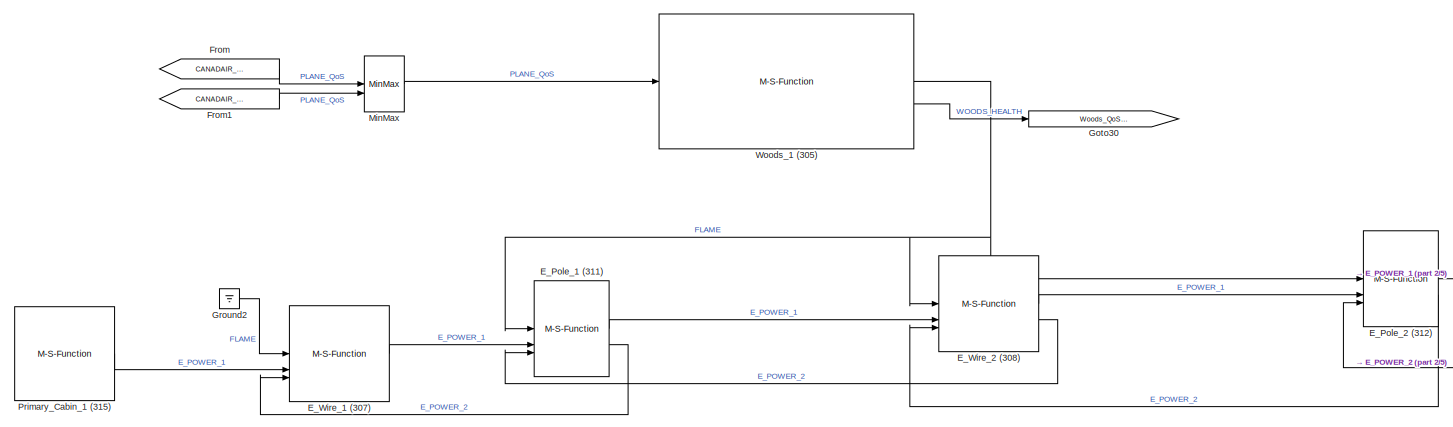
[diagram: root canvas - part 1/5, top center region]
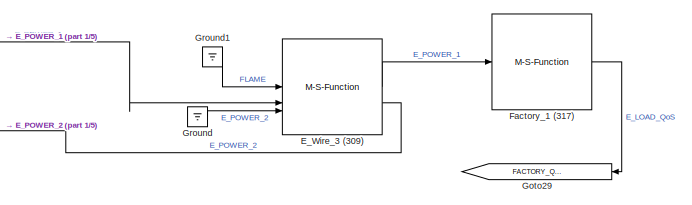
[diagram: root canvas - part 2/5, top right region]
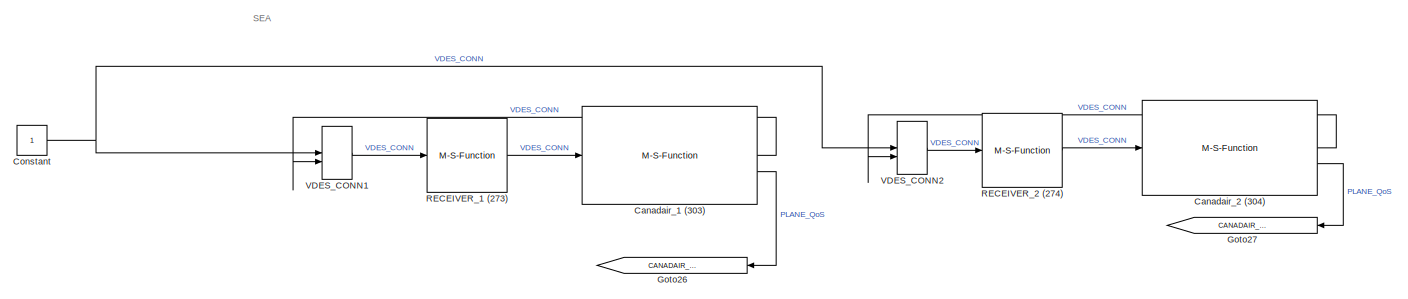
[diagram: root canvas - part 3/5, central region]
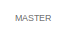
[diagram: root canvas - part 4/5, bottom left region]
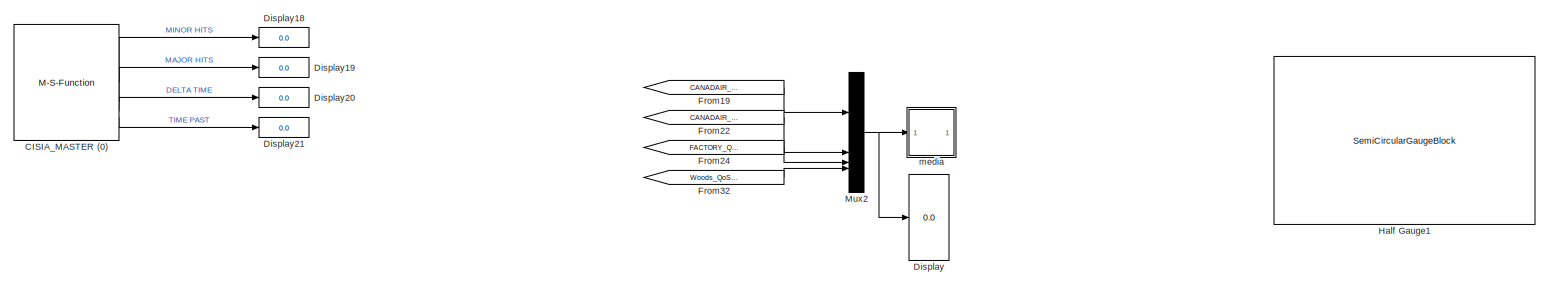
[diagram: root canvas - part 5/5, bottom center region]
MODEL slx_6f389c6af800
KIND model
CONFIG AbsTol = auto
CONFIG EnableMultiTasking = off
CONFIG FixedStep = auto
CONFIG MaxStep = auto
CONFIG MinStep = auto
CONFIG RelTol = 1e-3
CONFIG SampleTimeConstraint = Unconstrained
CONFIG SolverName = VariableStepAuto
CONFIG StartTime = 0.0
CONFIG StopTime = 2
BLOCK [M-S-Function] CISIA_MASTER (0)
  FunctionName = cisia_msfun
  Parameters = Parameter1, Parameter2, Parameter3, resources, Parameter4, Parameter5, Parameter6, Parameter7, Parameter8, Parameter9,Parameter11,Parameter12
BLOCK [M-S-Function] Canadair_1 (303)
  FunctionName = cisia_msfun
  Parameters = Parameter1, Parameter2, Parameter3, resources, Parameter10, codeupdate, step_received, step_computed, dynamic_computed, step_sended, id_entity, id_project, id_type, name_type, color
BLOCK [M-S-Function] Canadair_2 (304)
  FunctionName = cisia_msfun
  Parameters = Parameter1, Parameter2, Parameter3, resources, Parameter10, codeupdate, step_received, step_computed, dynamic_computed, step_sended, id_entity, id_project, id_type, name_type, color
BLOCK [Constant] Constant
BLOCK [Display] Display
  Decimation = 1
BLOCK [Display] Display18
  Decimation = 1
BLOCK [Display] Display19
  Decimation = 1
BLOCK [Display] Display20
  Decimation = 1
BLOCK [Display] Display21
  Decimation = 1
BLOCK [M-S-Function] E_Pole_1 (311)
  FunctionName = cisia_msfun
  Parameters = Parameter1, Parameter2, Parameter3, resources, Parameter10, codeupdate, step_received, step_computed, dynamic_computed, step_sended, id_entity, id_project, id_type, name_type, color
BLOCK [M-S-Function] E_Pole_2 (312)
  FunctionName = cisia_msfun
  Parameters = Parameter1, Parameter2, Parameter3, resources, Parameter10, codeupdate, step_received, step_computed, dynamic_computed, step_sended, id_entity, id_project, id_type, name_type, color
BLOCK [M-S-Function] E_Wire_1 (307)
  FunctionName = cisia_msfun
  Parameters = Parameter1, Parameter2, Parameter3, resources, Parameter10, codeupdate, step_received, step_computed, dynamic_computed, step_sended, id_entity, id_project, id_type, name_type, color
BLOCK [M-S-Function] E_Wire_2 (308)
  FunctionName = cisia_msfun
  Parameters = Parameter1, Parameter2, Parameter3, resources, Parameter10, codeupdate, step_received, step_computed, dynamic_computed, step_sended, id_entity, id_project, id_type, name_type, color
BLOCK [M-S-Function] E_Wire_3 (309)
  FunctionName = cisia_msfun
  Parameters = Parameter1, Parameter2, Parameter3, resources, Parameter10, codeupdate, step_received, step_computed, dynamic_computed, step_sended, id_entity, id_project, id_type, name_type, color
BLOCK [M-S-Function] Factory_1 (317)
  FunctionName = cisia_msfun
  Parameters = Parameter1, Parameter2, Parameter3, resources, Parameter10, codeupdate, step_received, step_computed, dynamic_computed, step_sended, id_entity, id_project, id_type, name_type, color
BLOCK [From] From
  GotoTag = CANADAIR_QoS_1
BLOCK [From] From1
  GotoTag = CANADAIR_QoS_2
BLOCK [From] From19
  GotoTag = CANADAIR_QoS_1
BLOCK [From] From22
  GotoTag = CANADAIR_QoS_2
BLOCK [From] From24
  GotoTag = FACTORY_QoS_1
BLOCK [From] From32
  GotoTag = Woods_QoS_1
BLOCK [Goto] Goto26
  GotoTag = CANADAIR_QoS_1
  NameLocation = top
BLOCK [Goto] Goto27
  GotoTag = CANADAIR_QoS_2
  NameLocation = top
BLOCK [Goto] Goto29
  GotoTag = FACTORY_QoS_1
  NameLocation = top
BLOCK [Goto] Goto30
  GotoTag = Woods_QoS_1
BLOCK [Ground] Ground
BLOCK [Ground] Ground1
BLOCK [Ground] Ground2
BLOCK [SemiCircularGaugeBlock] Half Gauge1
  ScaleMax = 1
BLOCK [MinMax] MinMax
  Function = max
  Inputs = 2
BLOCK [Mux] Mux2
  DisplayOption = bar
BLOCK [M-S-Function] Primary_Cabin_1 (315)
  FunctionName = cisia_msfun
  Parameters = Parameter1, Parameter2, Parameter3, resources, Parameter10, codeupdate, step_received, step_computed, dynamic_computed, step_sended, id_entity, id_project, id_type, name_type, color
BLOCK [M-S-Function] RECEIVER_1 (273)
  FunctionName = cisia_msfun
  Parameters = Parameter1, Parameter2, Parameter3, resources, Parameter10, codeupdate, step_received, step_computed, dynamic_computed, step_sended, id_entity, id_project, id_type, name_type, color
BLOCK [M-S-Function] RECEIVER_2 (274)
  FunctionName = cisia_msfun
  Parameters = Parameter1, Parameter2, Parameter3, resources, Parameter10, codeupdate, step_received, step_computed, dynamic_computed, step_sended, id_entity, id_project, id_type, name_type, color
BLOCK [MinMax] VDES_CONN1
  Function = max
  Inputs = 2
BLOCK [MinMax] VDES_CONN2
  Function = max
  Inputs = 2
BLOCK [M-S-Function] Woods_1 (305)
  FunctionName = cisia_msfun
  Parameters = Parameter1, Parameter2, Parameter3, resources, Parameter10, codeupdate, step_received, step_computed, dynamic_computed, step_sended, id_entity, id_project, id_type, name_type, color
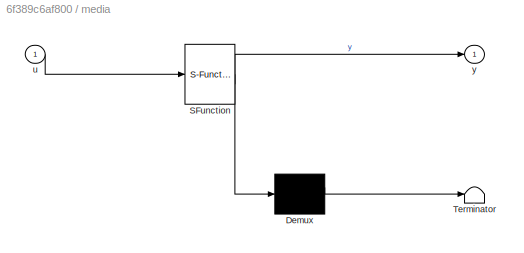
BLOCK [SubSystem] media
  ErrorFcn = Stateflow.Translate.translate
  LibrarySourceBlock = simulink/User-Defined\nFunctions/MATLAB Function
  PermitHierarchicalResolution = ExplicitOnly
  SFBlockType = MATLAB Function
  TreatAsAtomicUnit = on
BLOCK [Demux] media/ Demux 
  Outputs = 1
BLOCK [S-Function] media/ SFunction 
  EnableBusSupport = on
  FunctionName = sf_sfun
  PortCounts = [1 2]
  SFcnIsStateOwnerBlock = off
  SFunctionDeploymentMode = off
  Tag = Stateflow S-Function 2
BLOCK [Terminator] media/ Terminator 
BLOCK [Inport] media/u
BLOCK [Outport] media/y
ANNOTATION (root): MASTER
ANNOTATION (root): SEA
LINE CISIA_MASTER (0):1 -> Display18:1
LINE CISIA_MASTER (0):2 -> Display19:1
LINE CISIA_MASTER (0):3 -> Display20:1
LINE CISIA_MASTER (0):4 -> Display21:1
LINE Canadair_1 (303):1 -> VDES_CONN1:2
LINE Canadair_1 (303):2 -> Goto26:1
LINE Canadair_2 (304):1 -> VDES_CONN2:2
LINE Canadair_2 (304):2 -> Goto27:1
NET Constant:1 -> VDES_CONN1:1, VDES_CONN2:1
LINE E_Pole_1 (311):1 -> E_Wire_2 (308):2
LINE E_Pole_1 (311):2 -> E_Wire_1 (307):3
LINE E_Pole_2 (312):1 -> E_Wire_3 (309):2
LINE E_Pole_2 (312):2 -> E_Wire_2 (308):3
LINE E_Wire_1 (307):1 -> E_Pole_1 (311):2
LINE E_Wire_2 (308):1 -> E_Pole_2 (312):2
LINE E_Wire_2 (308):2 -> E_Pole_1 (311):3
LINE E_Wire_3 (309):1 -> Factory_1 (317):1
LINE E_Wire_3 (309):2 -> E_Pole_2 (312):3
LINE Factory_1 (317):1 -> Goto29:1
LINE From19:1 -> Mux2:1
LINE From1:1 -> MinMax:2
LINE From22:1 -> Mux2:2
LINE From24:1 -> Mux2:3
LINE From32:1 -> Mux2:4
LINE From:1 -> MinMax:1
LINE Ground1:1 -> E_Wire_3 (309):1
LINE Ground2:1 -> E_Wire_1 (307):1
LINE Ground:1 -> E_Wire_3 (309):3
LINE MinMax:1 -> Woods_1 (305):1
NET Mux2:1 -> Display:1, media:1
LINE Primary_Cabin_1 (315):1 -> E_Wire_1 (307):2
LINE RECEIVER_1 (273):1 -> Canadair_1 (303):1
LINE RECEIVER_2 (274):1 -> Canadair_2 (304):1
LINE VDES_CONN1:1 -> RECEIVER_1 (273):1
LINE VDES_CONN2:1 -> RECEIVER_2 (274):1
NET Woods_1 (305):1 -> E_Pole_1 (311):1, E_Pole_2 (312):1, E_Wire_2 (308):1
LINE Woods_1 (305):2 -> Goto30:1
note: NET lines group one-source signal fan-out (src -> all destinations, sorted); 1:1 wires keep LINE
CHART media states=1 transitions=1
  STATE_LABEL 'eML_blk_kernel()'
  STATE_LABEL 'SCRIPT:\nfunction y = media(u)\n\ny = mean(u);\n'
CHART  states=0 transitions=0
